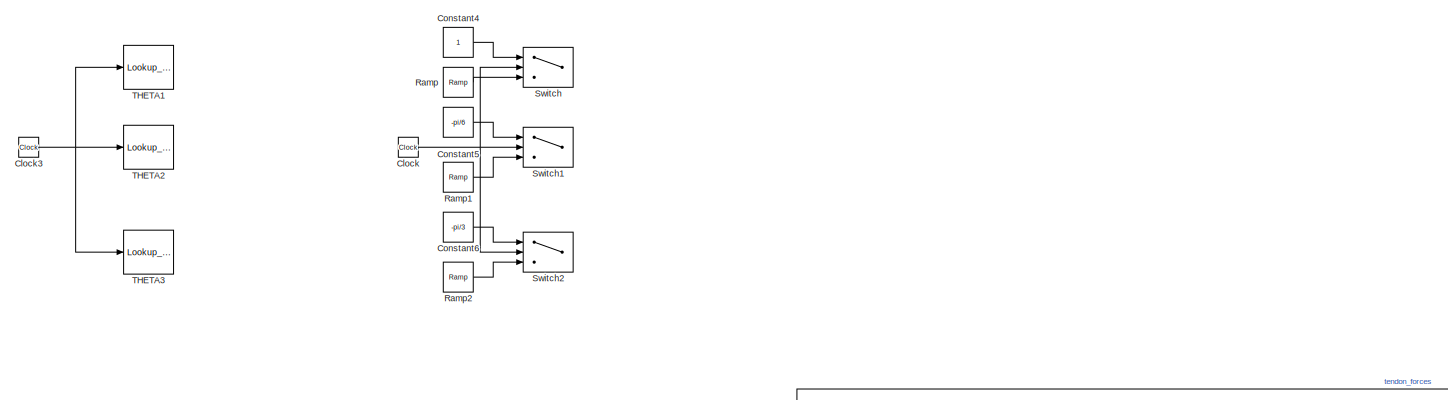
[diagram: root canvas - part 1/5, top left region]
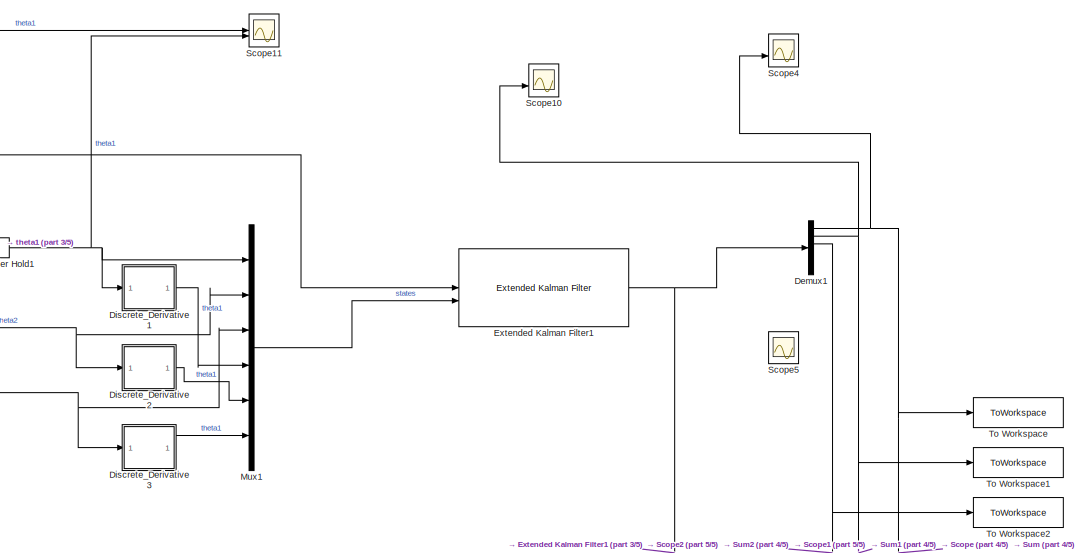
[diagram: root canvas - part 2/5, middle right region]
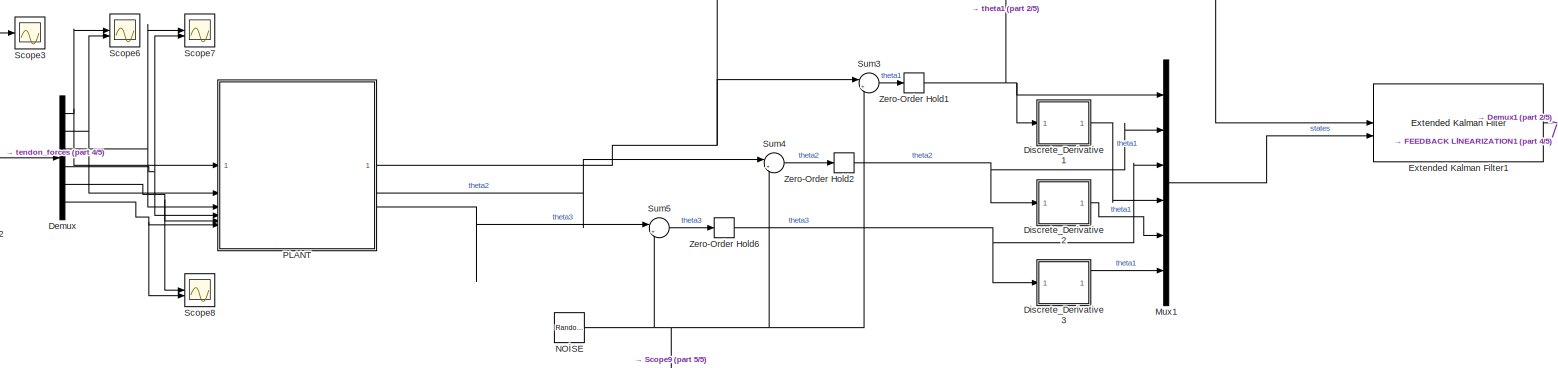
[diagram: root canvas - part 3/5, central region]
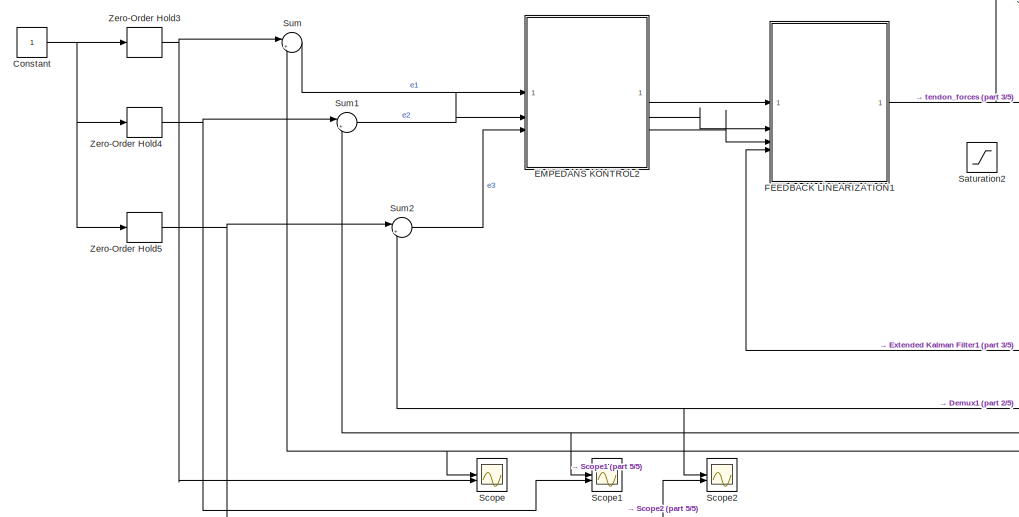
[diagram: root canvas - part 4/5, bottom left region]
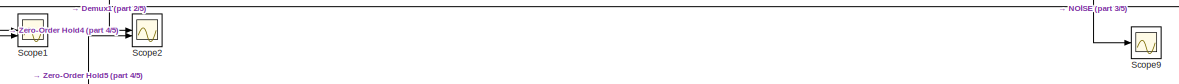
[diagram: root canvas - part 5/5, bottom center region]
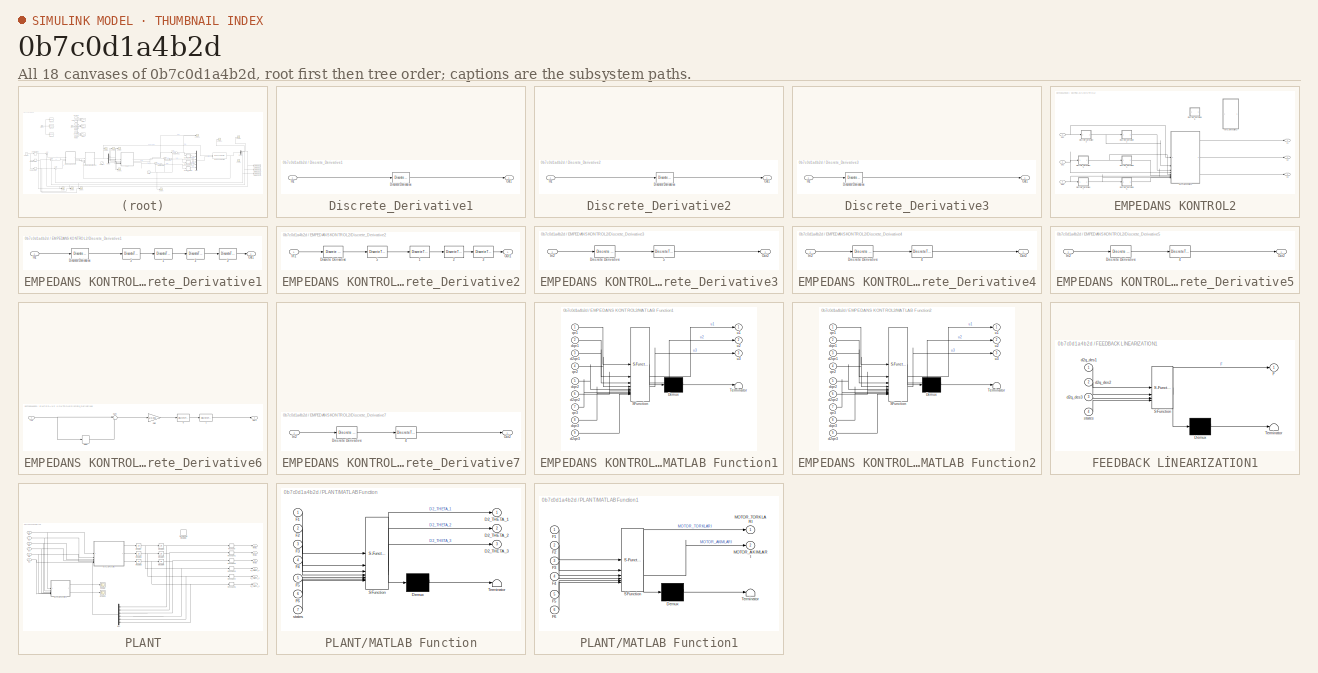
[diagram: thumbnail index - all 18 canvases of the model, root first then tree order]
MODEL slx_0b7c0d1a4b2d
KIND model
CONFIG AbsTol = auto
CONFIG EnableMultiTasking = off
CONFIG FixedStep = 0.001
CONFIG MaxStep = auto
CONFIG MinStep = auto
CONFIG RelTol = 1e-3
CONFIG SampleTimeConstraint = Unconstrained
CONFIG SolverName = FixedStepAuto
CONFIG StartTime = 0.0
CONFIG StopTime = 10
BLOCK [Clock] Clock
BLOCK [Clock] Clock3
BLOCK [Constant] Constant
BLOCK [Constant] Constant4
BLOCK [Constant] Constant5
  Value = -pi/6
BLOCK [Constant] Constant6
  Value = -pi/3
BLOCK [Demux] Demux
  Outputs = 6
BLOCK [Demux] Demux1
  Outputs = 6
BLOCK [SubSystem] Discrete_Derivative1
BLOCK [Reference] Discrete_Derivative1/Discrete Derivative  REF=simulink/Discrete/Discrete Derivative
  SourceBlock = simulink/Discrete/Discrete Derivative
  SourceType = Discrete Derivative
BLOCK [Inport] Discrete_Derivative1/In1
BLOCK [Outport] Discrete_Derivative1/Out1
BLOCK [SubSystem] Discrete_Derivative2
BLOCK [Reference] Discrete_Derivative2/Discrete Derivative  REF=simulink/Discrete/Discrete Derivative
  SourceBlock = simulink/Discrete/Discrete Derivative
  SourceType = Discrete Derivative
BLOCK [Inport] Discrete_Derivative2/In1
BLOCK [Outport] Discrete_Derivative2/Out1
BLOCK [SubSystem] Discrete_Derivative3
BLOCK [Reference] Discrete_Derivative3/Discrete Derivative  REF=simulink/Discrete/Discrete Derivative
  SourceBlock = simulink/Discrete/Discrete Derivative
  SourceType = Discrete Derivative
BLOCK [Inport] Discrete_Derivative3/In1
BLOCK [Outport] Discrete_Derivative3/Out1
BLOCK [SubSystem] EMPEDANS KONTROL2
BLOCK [SubSystem] EMPEDANS KONTROL2/Discrete_Derivative1
BLOCK [DiscreteTransferFcn] EMPEDANS KONTROL2/Discrete_Derivative1/1
  CloseFcn = dspblkCoreblockFVToolHelper(gcbh,'close');
  CopyFcn = dspblkCoreblockFVToolHelper(gcbh,'copy');
  DeleteFcn = dspblkCoreblockFVToolHelper(gcbh,'close');
  Denominator = [1 -0.9412]
  InputPortMap = u0
  LoadFcn = dspblkCoreblockFVToolHelper(gcbh,'load');
  ModelCloseFcn = dspblkCoreblockFVToolHelper(gcbh,'close');
  NameLocation = top
  Numerator = [0.0588]
  PostSaveFcn = dspblkCoreblockFVToolHelper(gcbh,'postsave');
  PreSaveFcn = dspblkCoreblockFVToolHelper(gcbh,'presave');
BLOCK [DiscreteTransferFcn] EMPEDANS KONTROL2/Discrete_Derivative1/2
  CloseFcn = dspblkCoreblockFVToolHelper(gcbh,'close');
  CopyFcn = dspblkCoreblockFVToolHelper(gcbh,'copy');
  DeleteFcn = dspblkCoreblockFVToolHelper(gcbh,'close');
  Denominator = [1 -0.9412]
  InputPortMap = u0
  LoadFcn = dspblkCoreblockFVToolHelper(gcbh,'load');
  ModelCloseFcn = dspblkCoreblockFVToolHelper(gcbh,'close');
  NameLocation = top
  Numerator = [0.0588]
  PostSaveFcn = dspblkCoreblockFVToolHelper(gcbh,'postsave');
  PreSaveFcn = dspblkCoreblockFVToolHelper(gcbh,'presave');
BLOCK [DiscreteTransferFcn] EMPEDANS KONTROL2/Discrete_Derivative1/3
  CloseFcn = dspblkCoreblockFVToolHelper(gcbh,'close');
  CopyFcn = dspblkCoreblockFVToolHelper(gcbh,'copy');
  DeleteFcn = dspblkCoreblockFVToolHelper(gcbh,'close');
  Denominator = [1 -0.9412]
  InputPortMap = u0
  LoadFcn = dspblkCoreblockFVToolHelper(gcbh,'load');
  ModelCloseFcn = dspblkCoreblockFVToolHelper(gcbh,'close');
  NameLocation = top
  Numerator = [0.0588]
  PostSaveFcn = dspblkCoreblockFVToolHelper(gcbh,'postsave');
  PreSaveFcn = dspblkCoreblockFVToolHelper(gcbh,'presave');
BLOCK [DiscreteTransferFcn] EMPEDANS KONTROL2/Discrete_Derivative1/5
  CloseFcn = dspblkCoreblockFVToolHelper(gcbh,'close');
  CopyFcn = dspblkCoreblockFVToolHelper(gcbh,'copy');
  DeleteFcn = dspblkCoreblockFVToolHelper(gcbh,'close');
  Denominator = [1 -0.9412]
  InputPortMap = u0
  LoadFcn = dspblkCoreblockFVToolHelper(gcbh,'load');
  ModelCloseFcn = dspblkCoreblockFVToolHelper(gcbh,'close');
  NameLocation = top
  Numerator = [0.0588]
  PostSaveFcn = dspblkCoreblockFVToolHelper(gcbh,'postsave');
  PreSaveFcn = dspblkCoreblockFVToolHelper(gcbh,'presave');
BLOCK [Reference] EMPEDANS KONTROL2/Discrete_Derivative1/Discrete Derivative  REF=simulink/Discrete/Discrete Derivative
  SourceBlock = simulink/Discrete/Discrete Derivative
  SourceType = Discrete Derivative
BLOCK [Inport] EMPEDANS KONTROL2/Discrete_Derivative1/In1
BLOCK [Outport] EMPEDANS KONTROL2/Discrete_Derivative1/Out1
BLOCK [SubSystem] EMPEDANS KONTROL2/Discrete_Derivative2
BLOCK [DiscreteTransferFcn] EMPEDANS KONTROL2/Discrete_Derivative2/1
  CloseFcn = dspblkCoreblockFVToolHelper(gcbh,'close');
  CopyFcn = dspblkCoreblockFVToolHelper(gcbh,'copy');
  DeleteFcn = dspblkCoreblockFVToolHelper(gcbh,'close');
  Denominator = [1 -0.9412]
  InputPortMap = u0
  LoadFcn = dspblkCoreblockFVToolHelper(gcbh,'load');
  ModelCloseFcn = dspblkCoreblockFVToolHelper(gcbh,'close');
  NameLocation = top
  Numerator = [0.0588]
  PostSaveFcn = dspblkCoreblockFVToolHelper(gcbh,'postsave');
  PreSaveFcn = dspblkCoreblockFVToolHelper(gcbh,'presave');
BLOCK [DiscreteTransferFcn] EMPEDANS KONTROL2/Discrete_Derivative2/2
  CloseFcn = dspblkCoreblockFVToolHelper(gcbh,'close');
  CopyFcn = dspblkCoreblockFVToolHelper(gcbh,'copy');
  DeleteFcn = dspblkCoreblockFVToolHelper(gcbh,'close');
  Denominator = [1 -0.9412]
  InputPortMap = u0
  LoadFcn = dspblkCoreblockFVToolHelper(gcbh,'load');
  ModelCloseFcn = dspblkCoreblockFVToolHelper(gcbh,'close');
  NameLocation = top
  Numerator = [0.0588]
  PostSaveFcn = dspblkCoreblockFVToolHelper(gcbh,'postsave');
  PreSaveFcn = dspblkCoreblockFVToolHelper(gcbh,'presave');
BLOCK [DiscreteTransferFcn] EMPEDANS KONTROL2/Discrete_Derivative2/3
  CloseFcn = dspblkCoreblockFVToolHelper(gcbh,'close');
  CopyFcn = dspblkCoreblockFVToolHelper(gcbh,'copy');
  DeleteFcn = dspblkCoreblockFVToolHelper(gcbh,'close');
  Denominator = [1 -0.9412]
  InputPortMap = u0
  LoadFcn = dspblkCoreblockFVToolHelper(gcbh,'load');
  ModelCloseFcn = dspblkCoreblockFVToolHelper(gcbh,'close');
  NameLocation = top
  Numerator = [0.0588]
  PostSaveFcn = dspblkCoreblockFVToolHelper(gcbh,'postsave');
  PreSaveFcn = dspblkCoreblockFVToolHelper(gcbh,'presave');
BLOCK [DiscreteTransferFcn] EMPEDANS KONTROL2/Discrete_Derivative2/5
  CloseFcn = dspblkCoreblockFVToolHelper(gcbh,'close');
  CopyFcn = dspblkCoreblockFVToolHelper(gcbh,'copy');
  DeleteFcn = dspblkCoreblockFVToolHelper(gcbh,'close');
  Denominator = [1 -0.9412]
  InputPortMap = u0
  LoadFcn = dspblkCoreblockFVToolHelper(gcbh,'load');
  ModelCloseFcn = dspblkCoreblockFVToolHelper(gcbh,'close');
  NameLocation = top
  Numerator = [0.0588]
  PostSaveFcn = dspblkCoreblockFVToolHelper(gcbh,'postsave');
  PreSaveFcn = dspblkCoreblockFVToolHelper(gcbh,'presave');
BLOCK [Reference] EMPEDANS KONTROL2/Discrete_Derivative2/Discrete Derivative  REF=simulink/Discrete/Discrete Derivative
  SourceBlock = simulink/Discrete/Discrete Derivative
  SourceType = Discrete Derivative
BLOCK [Inport] EMPEDANS KONTROL2/Discrete_Derivative2/In1
BLOCK [Outport] EMPEDANS KONTROL2/Discrete_Derivative2/Out1
BLOCK [SubSystem] EMPEDANS KONTROL2/Discrete_Derivative3
BLOCK [DiscreteTransferFcn] EMPEDANS KONTROL2/Discrete_Derivative3/5
  CloseFcn = dspblkCoreblockFVToolHelper(gcbh,'close');
  CopyFcn = dspblkCoreblockFVToolHelper(gcbh,'copy');
  DeleteFcn = dspblkCoreblockFVToolHelper(gcbh,'close');
  Denominator = [1 -0.9412]
  InputPortMap = u0
  LoadFcn = dspblkCoreblockFVToolHelper(gcbh,'load');
  ModelCloseFcn = dspblkCoreblockFVToolHelper(gcbh,'close');
  NameLocation = top
  Numerator = [0.0588]
  PostSaveFcn = dspblkCoreblockFVToolHelper(gcbh,'postsave');
  PreSaveFcn = dspblkCoreblockFVToolHelper(gcbh,'presave');
BLOCK [Reference] EMPEDANS KONTROL2/Discrete_Derivative3/Discrete Derivative  REF=simulink/Discrete/Discrete Derivative
  SourceBlock = simulink/Discrete/Discrete Derivative
  SourceType = Discrete Derivative
BLOCK [Inport] EMPEDANS KONTROL2/Discrete_Derivative3/In2
BLOCK [Outport] EMPEDANS KONTROL2/Discrete_Derivative3/Out2
BLOCK [SubSystem] EMPEDANS KONTROL2/Discrete_Derivative4
BLOCK [DiscreteTransferFcn] EMPEDANS KONTROL2/Discrete_Derivative4/4
  CloseFcn = dspblkCoreblockFVToolHelper(gcbh,'close');
  CopyFcn = dspblkCoreblockFVToolHelper(gcbh,'copy');
  DeleteFcn = dspblkCoreblockFVToolHelper(gcbh,'close');
  Denominator = [1 -0.9412]
  InputPortMap = u0
  LoadFcn = dspblkCoreblockFVToolHelper(gcbh,'load');
  ModelCloseFcn = dspblkCoreblockFVToolHelper(gcbh,'close');
  NameLocation = top
  Numerator = [0.0588]
  PostSaveFcn = dspblkCoreblockFVToolHelper(gcbh,'postsave');
  PreSaveFcn = dspblkCoreblockFVToolHelper(gcbh,'presave');
BLOCK [Reference] EMPEDANS KONTROL2/Discrete_Derivative4/Discrete Derivative  REF=simulink/Discrete/Discrete Derivative
  SourceBlock = simulink/Discrete/Discrete Derivative
  SourceType = Discrete Derivative
BLOCK [Inport] EMPEDANS KONTROL2/Discrete_Derivative4/In2
BLOCK [Outport] EMPEDANS KONTROL2/Discrete_Derivative4/Out2
BLOCK [SubSystem] EMPEDANS KONTROL2/Discrete_Derivative5
BLOCK [DiscreteTransferFcn] EMPEDANS KONTROL2/Discrete_Derivative5/4
  CloseFcn = dspblkCoreblockFVToolHelper(gcbh,'close');
  CopyFcn = dspblkCoreblockFVToolHelper(gcbh,'copy');
  DeleteFcn = dspblkCoreblockFVToolHelper(gcbh,'close');
  Denominator = [1 -0.9412]
  InputPortMap = u0
  LoadFcn = dspblkCoreblockFVToolHelper(gcbh,'load');
  ModelCloseFcn = dspblkCoreblockFVToolHelper(gcbh,'close');
  NameLocation = top
  Numerator = [0.0588]
  PostSaveFcn = dspblkCoreblockFVToolHelper(gcbh,'postsave');
  PreSaveFcn = dspblkCoreblockFVToolHelper(gcbh,'presave');
BLOCK [Reference] EMPEDANS KONTROL2/Discrete_Derivative5/Discrete Derivative  REF=simulink/Discrete/Discrete Derivative
  SourceBlock = simulink/Discrete/Discrete Derivative
  SourceType = Discrete Derivative
BLOCK [Inport] EMPEDANS KONTROL2/Discrete_Derivative5/In2
BLOCK [Outport] EMPEDANS KONTROL2/Discrete_Derivative5/Out2
BLOCK [SubSystem] EMPEDANS KONTROL2/Discrete_Derivative6
BLOCK [DiscreteTransferFcn] EMPEDANS KONTROL2/Discrete_Derivative6/1
  CloseFcn = dspblkCoreblockFVToolHelper(gcbh,'close');
  CopyFcn = dspblkCoreblockFVToolHelper(gcbh,'copy');
  DeleteFcn = dspblkCoreblockFVToolHelper(gcbh,'close');
  Denominator = [1 -0.9412]
  InputPortMap = u0
  LoadFcn = dspblkCoreblockFVToolHelper(gcbh,'load');
  ModelCloseFcn = dspblkCoreblockFVToolHelper(gcbh,'close');
  NameLocation = top
  Numerator = [0.0588]
  PostSaveFcn = dspblkCoreblockFVToolHelper(gcbh,'postsave');
  PreSaveFcn = dspblkCoreblockFVToolHelper(gcbh,'presave');
BLOCK [DiscreteTransferFcn] EMPEDANS KONTROL2/Discrete_Derivative6/5
  CloseFcn = dspblkCoreblockFVToolHelper(gcbh,'close');
  CopyFcn = dspblkCoreblockFVToolHelper(gcbh,'copy');
  DeleteFcn = dspblkCoreblockFVToolHelper(gcbh,'close');
  Denominator = [1 -0.9412]
  InputPortMap = u0
  LoadFcn = dspblkCoreblockFVToolHelper(gcbh,'load');
  ModelCloseFcn = dspblkCoreblockFVToolHelper(gcbh,'close');
  NameLocation = top
  Numerator = [0.0588]
  PostSaveFcn = dspblkCoreblockFVToolHelper(gcbh,'postsave');
  PreSaveFcn = dspblkCoreblockFVToolHelper(gcbh,'presave');
BLOCK [Delay] EMPEDANS KONTROL2/Discrete_Derivative6/Delay
  DelayLength = 1
  InputPortMap = u0
  InputProcessing = Columns as channels (frame based)
  SampleTime = 0.001
BLOCK [Gain] EMPEDANS KONTROL2/Discrete_Derivative6/Gain
  Gain = 1/0.001
BLOCK [Inport] EMPEDANS KONTROL2/Discrete_Derivative6/In1
BLOCK [Outport] EMPEDANS KONTROL2/Discrete_Derivative6/Out1
BLOCK [Sum] EMPEDANS KONTROL2/Discrete_Derivative6/Sum
  Inputs = |+-
BLOCK [SubSystem] EMPEDANS KONTROL2/Discrete_Derivative7
BLOCK [DiscreteTransferFcn] EMPEDANS KONTROL2/Discrete_Derivative7/4
  CloseFcn = dspblkCoreblockFVToolHelper(gcbh,'close');
  CopyFcn = dspblkCoreblockFVToolHelper(gcbh,'copy');
  DeleteFcn = dspblkCoreblockFVToolHelper(gcbh,'close');
  Denominator = [1 -0.9412]
  InputPortMap = u0
  LoadFcn = dspblkCoreblockFVToolHelper(gcbh,'load');
  ModelCloseFcn = dspblkCoreblockFVToolHelper(gcbh,'close');
  NameLocation = top
  Numerator = [0.0588]
  PostSaveFcn = dspblkCoreblockFVToolHelper(gcbh,'postsave');
  PreSaveFcn = dspblkCoreblockFVToolHelper(gcbh,'presave');
BLOCK [Reference] EMPEDANS KONTROL2/Discrete_Derivative7/Discrete Derivative  REF=simulink/Discrete/Discrete Derivative
  SourceBlock = simulink/Discrete/Discrete Derivative
  SourceType = Discrete Derivative
BLOCK [Inport] EMPEDANS KONTROL2/Discrete_Derivative7/In2
BLOCK [Outport] EMPEDANS KONTROL2/Discrete_Derivative7/Out2
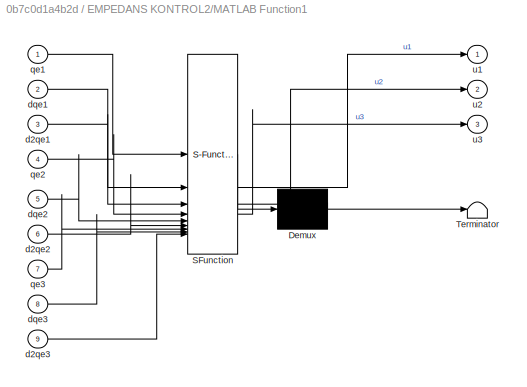
BLOCK [SubSystem] EMPEDANS KONTROL2/MATLAB Function1
  ErrorFcn = Stateflow.Translate.translate
  PermitHierarchicalResolution = ExplicitOnly
  SFBlockType = MATLAB Function
  TreatAsAtomicUnit = on
BLOCK [Demux] EMPEDANS KONTROL2/MATLAB Function1/ Demux 
  Outputs = 1
BLOCK [S-Function] EMPEDANS KONTROL2/MATLAB Function1/ SFunction 
  EnableBusSupport = on
  FunctionName = sf_sfun
  PortCounts = [9 4]
  SFcnIsStateOwnerBlock = off
  SFunctionDeploymentMode = off
  Tag = Stateflow S-Function 6
BLOCK [Terminator] EMPEDANS KONTROL2/MATLAB Function1/ Terminator 
BLOCK [Inport] EMPEDANS KONTROL2/MATLAB Function1/d2qe1
  Port = 3
BLOCK [Inport] EMPEDANS KONTROL2/MATLAB Function1/d2qe2
  Port = 6
BLOCK [Inport] EMPEDANS KONTROL2/MATLAB Function1/d2qe3
  Port = 9
BLOCK [Inport] EMPEDANS KONTROL2/MATLAB Function1/dqe1
  Port = 2
BLOCK [Inport] EMPEDANS KONTROL2/MATLAB Function1/dqe2
  Port = 5
BLOCK [Inport] EMPEDANS KONTROL2/MATLAB Function1/dqe3
  Port = 8
BLOCK [Inport] EMPEDANS KONTROL2/MATLAB Function1/qe1
BLOCK [Inport] EMPEDANS KONTROL2/MATLAB Function1/qe2
  Port = 4
BLOCK [Inport] EMPEDANS KONTROL2/MATLAB Function1/qe3
  Port = 7
BLOCK [Outport] EMPEDANS KONTROL2/MATLAB Function1/u1
BLOCK [Outport] EMPEDANS KONTROL2/MATLAB Function1/u2
  Port = 2
BLOCK [Outport] EMPEDANS KONTROL2/MATLAB Function1/u3
  Port = 3
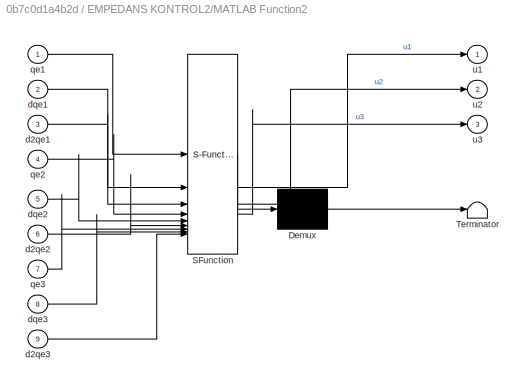
BLOCK [SubSystem] EMPEDANS KONTROL2/MATLAB Function2
  ErrorFcn = Stateflow.Translate.translate
  PermitHierarchicalResolution = ExplicitOnly
  SFBlockType = MATLAB Function
  TreatAsAtomicUnit = on
BLOCK [Demux] EMPEDANS KONTROL2/MATLAB Function2/ Demux 
  Outputs = 1
BLOCK [S-Function] EMPEDANS KONTROL2/MATLAB Function2/ SFunction 
  EnableBusSupport = on
  FunctionName = sf_sfun
  PortCounts = [9 4]
  SFcnIsStateOwnerBlock = off
  SFunctionDeploymentMode = off
  Tag = Stateflow S-Function 4
BLOCK [Terminator] EMPEDANS KONTROL2/MATLAB Function2/ Terminator 
BLOCK [Inport] EMPEDANS KONTROL2/MATLAB Function2/d2qe1
  Port = 3
BLOCK [Inport] EMPEDANS KONTROL2/MATLAB Function2/d2qe2
  Port = 6
BLOCK [Inport] EMPEDANS KONTROL2/MATLAB Function2/d2qe3
  Port = 9
BLOCK [Inport] EMPEDANS KONTROL2/MATLAB Function2/dqe1
  Port = 2
BLOCK [Inport] EMPEDANS KONTROL2/MATLAB Function2/dqe2
  Port = 5
BLOCK [Inport] EMPEDANS KONTROL2/MATLAB Function2/dqe3
  Port = 8
BLOCK [Inport] EMPEDANS KONTROL2/MATLAB Function2/qe1
BLOCK [Inport] EMPEDANS KONTROL2/MATLAB Function2/qe2
  Port = 4
BLOCK [Inport] EMPEDANS KONTROL2/MATLAB Function2/qe3
  Port = 7
BLOCK [Outport] EMPEDANS KONTROL2/MATLAB Function2/u1
BLOCK [Outport] EMPEDANS KONTROL2/MATLAB Function2/u2
  Port = 2
BLOCK [Outport] EMPEDANS KONTROL2/MATLAB Function2/u3
  Port = 3
BLOCK [Inport] EMPEDANS KONTROL2/qe1
BLOCK [Inport] EMPEDANS KONTROL2/qe2
  Port = 2
BLOCK [Inport] EMPEDANS KONTROL2/qe3
  Port = 3
BLOCK [Outport] EMPEDANS KONTROL2/u1
BLOCK [Outport] EMPEDANS KONTROL2/u2
  Port = 2
BLOCK [Outport] EMPEDANS KONTROL2/u3
  Port = 3
BLOCK [Reference] Extended Kalman Filter1  REF=sharedTrackingLibrary/Extended Kalman Filter
  LibrarySourceBlock = slident/Estimators/Extended Kalman Filter
  SourceBlock = sharedTrackingLibrary/Extended Kalman Filter
  SourceType = Extended Kalman Filter
BLOCK [SubSystem] FEEDBACK LİNEARIZATION1
  ErrorFcn = Stateflow.Translate.translate
  PermitHierarchicalResolution = ExplicitOnly
  SFBlockType = MATLAB Function
  TreatAsAtomicUnit = on
BLOCK [Demux] FEEDBACK LİNEARIZATION1/ Demux 
  Outputs = 1
BLOCK [S-Function] FEEDBACK LİNEARIZATION1/ SFunction 
  EnableBusSupport = on
  FunctionName = sf_sfun
  PortCounts = [4 2]
  SFcnIsStateOwnerBlock = off
  SFunctionDeploymentMode = off
  Tag = Stateflow S-Function 3
BLOCK [Terminator] FEEDBACK LİNEARIZATION1/ Terminator 
BLOCK [Outport] FEEDBACK LİNEARIZATION1/F
BLOCK [Inport] FEEDBACK LİNEARIZATION1/d2q_des1
BLOCK [Inport] FEEDBACK LİNEARIZATION1/d2q_des2
  Port = 2
BLOCK [Inport] FEEDBACK LİNEARIZATION1/d2q_des3
  Port = 3
BLOCK [Inport] FEEDBACK LİNEARIZATION1/states
  Port = 4
BLOCK [Mux] Mux1
  DisplayOption = bar
  Inputs = 6
BLOCK [RandomNumber] NOİSE
  SampleTime = 0.001
  Variance = 6e-6
BLOCK [SubSystem] PLANT
BLOCK [Outport] PLANT/D_THETA_1
  Port = 4
BLOCK [Outport] PLANT/D_THETA_2
  Port = 5
BLOCK [Outport] PLANT/D_THETA_3
  Port = 6
BLOCK [DiscreteIntegrator] PLANT/Discrete-Time Integrator1
  ICPrevOutput = DiscIntNeverNeededParam
  ICPrevScaledInput = DiscIntNeverNeededParam
  InitialConditionSetting = Auto
  SampleTime = 0.001
BLOCK [Inport] PLANT/F1
BLOCK [Inport] PLANT/F2
  Port = 2
BLOCK [Inport] PLANT/F3
  Port = 3
BLOCK [Inport] PLANT/F4
  Port = 4
BLOCK [Inport] PLANT/F5
  Port = 5
BLOCK [Inport] PLANT/F6
  Port = 6
BLOCK [Integrator] PLANT/Integrator
BLOCK [Integrator] PLANT/Integrator1
BLOCK [Integrator] PLANT/Integrator2
BLOCK [Integrator] PLANT/Integrator3
BLOCK [Integrator] PLANT/Integrator4
BLOCK [Integrator] PLANT/Integrator5
BLOCK [SubSystem] PLANT/MATLAB Function
  ErrorFcn = Stateflow.Translate.translate
  PermitHierarchicalResolution = ExplicitOnly
  SFBlockType = MATLAB Function
  TreatAsAtomicUnit = on
BLOCK [Demux] PLANT/MATLAB Function/ Demux 
  Outputs = 1
BLOCK [S-Function] PLANT/MATLAB Function/ SFunction 
  EnableBusSupport = on
  FunctionName = sf_sfun
  PortCounts = [7 4]
  SFcnIsStateOwnerBlock = off
  SFunctionDeploymentMode = off
  Tag = Stateflow S-Function 2
BLOCK [Terminator] PLANT/MATLAB Function/ Terminator 
BLOCK [Outport] PLANT/MATLAB Function/D2_THETA_1
BLOCK [Outport] PLANT/MATLAB Function/D2_THETA_2
  Port = 2
BLOCK [Outport] PLANT/MATLAB Function/D2_THETA_3
  Port = 3
BLOCK [Inport] PLANT/MATLAB Function/F1
BLOCK [Inport] PLANT/MATLAB Function/F2
  Port = 2
BLOCK [Inport] PLANT/MATLAB Function/F3
  Port = 3
BLOCK [Inport] PLANT/MATLAB Function/F4
  Port = 4
BLOCK [Inport] PLANT/MATLAB Function/F5
  Port = 5
BLOCK [Inport] PLANT/MATLAB Function/F6
  Port = 6
BLOCK [Inport] PLANT/MATLAB Function/states
  Port = 7
BLOCK [SubSystem] PLANT/MATLAB Function1
  ErrorFcn = Stateflow.Translate.translate
  PermitHierarchicalResolution = ExplicitOnly
  SFBlockType = MATLAB Function
  TreatAsAtomicUnit = on
BLOCK [Demux] PLANT/MATLAB Function1/ Demux 
  Outputs = 1
BLOCK [S-Function] PLANT/MATLAB Function1/ SFunction 
  EnableBusSupport = on
  FunctionName = sf_sfun
  PortCounts = [6 3]
  SFcnIsStateOwnerBlock = off
  SFunctionDeploymentMode = off
  Tag = Stateflow S-Function 1
BLOCK [Terminator] PLANT/MATLAB Function1/ Terminator 
BLOCK [Inport] PLANT/MATLAB Function1/F1
BLOCK [Inport] PLANT/MATLAB Function1/F2
  Port = 2
BLOCK [Inport] PLANT/MATLAB Function1/F3
  Port = 3
BLOCK [Inport] PLANT/MATLAB Function1/F4
  Port = 4
BLOCK [Inport] PLANT/MATLAB Function1/F5
  Port = 5
BLOCK [Inport] PLANT/MATLAB Function1/F6
  Port = 6
BLOCK [Outport] PLANT/MATLAB Function1/MOTOR_AKIMLARI
  Port = 2
BLOCK [Outport] PLANT/MATLAB Function1/MOTOR_TORKLARI
BLOCK [Mux] PLANT/Mux
  DisplayOption = bar
  Inputs = 6
  NameLocation = top
BLOCK [Reshape] PLANT/Reshape
  OutputDimensionality = Customize
BLOCK [Reshape] PLANT/Reshape1
  OutputDimensionality = Customize
BLOCK [Reshape] PLANT/Reshape2
  OutputDimensionality = Customize
BLOCK [Reshape] PLANT/Reshape3
  OutputDimensionality = Customize
BLOCK [Reshape] PLANT/Reshape4
  OutputDimensionality = Customize
BLOCK [Reshape] PLANT/Reshape5
  OutputDimensionality = Customize
BLOCK [Scope] PLANT/Scope
  Floating = off
  NumInputPorts = 1
  ScopeSpecificationString = Simulink.scopes.TimeScopeBlockCfg('CurrentConfiguration', extmgr.ConfigurationSet(extmgr.Configuration('Core','General UI',true),extmgr.Configuration('Core','Source UI',true),extmgr.Configuration('Sources','WiredSimulink',true,'DataLoggingVariableName','ScopeData1'),extmgr.Configuration('Visuals','Time Domain',true,'SerializedDisplays',{struct('MinYLimReal','-0.0105','MaxYLimReal','0.09573','YLabe...<+1686ch>
BLOCK [Scope] PLANT/Scope1
  Floating = off
  NumInputPorts = 1
  ScopeSpecificationString = Simulink.scopes.TimeScopeBlockCfg('CurrentConfiguration', extmgr.ConfigurationSet(extmgr.Configuration('Core','General UI',true),extmgr.Configuration('Core','Source UI',true),extmgr.Configuration('Sources','WiredSimulink',true,'DataLoggingVariableName','ScopeData2'),extmgr.Configuration('Visuals','Time Domain',true,'SerializedDisplays',{struct('MinYLimReal','-0.01063','MaxYLimReal','0.09566','YLab...<+1732ch>
BLOCK [Outport] PLANT/theta1
BLOCK [Outport] PLANT/theta2
  Port = 2
BLOCK [Outport] PLANT/theta3
  Port = 3
BLOCK [Reference] Ramp  REF=simulink/Sources/Ramp
  SourceBlock = simulink/Sources/Ramp
  SourceType = Ramp
BLOCK [Reference] Ramp1  REF=simulink/Sources/Ramp
  SourceBlock = simulink/Sources/Ramp
  SourceType = Ramp
BLOCK [Reference] Ramp2  REF=simulink/Sources/Ramp
  SourceBlock = simulink/Sources/Ramp
  SourceType = Ramp
BLOCK [Saturate] Saturation2
  LowerLimit = -7
  UpperLimit = 7
BLOCK [Scope] Scope
  Floating = off
  NumInputPorts = 2
  ScopeSpecificationString = Simulink.scopes.TimeScopeBlockCfg('CurrentConfiguration', extmgr.ConfigurationSet(extmgr.Configuration('Core','General UI',true,'FigureColor',[0.831372549019608 0.815686274509804 0.784313725490196]),extmgr.Configuration('Core','Source UI',true),extmgr.Configuration('Sources','WiredSimulink',true,'DataLoggingVariableName','ScopeData1'),extmgr.Configuration('Visuals','Time Domain',true,'SerializedDi...<+1886ch>
BLOCK [Scope] Scope1
  Floating = off
  NumInputPorts = 2
  ScopeSpecificationString = Simulink.scopes.TimeScopeBlockCfg('CurrentConfiguration', extmgr.ConfigurationSet(extmgr.Configuration('Core','General UI',true,'FigureColor',[0.831372549019608 0.815686274509804 0.784313725490196]),extmgr.Configuration('Core','Source UI',true),extmgr.Configuration('Sources','WiredSimulink',true,'DataLoggingVariableName','ScopeData2'),extmgr.Configuration('Visuals','Time Domain',true,'SerializedDi...<+1886ch>
BLOCK [Scope] Scope10
  Floating = off
  NumInputPorts = 2
  ScopeSpecificationString = Simulink.scopes.TimeScopeBlockCfg('CurrentConfiguration', extmgr.ConfigurationSet(extmgr.Configuration('Core','General UI',true),extmgr.Configuration('Core','Source UI',true),extmgr.Configuration('Sources','WiredSimulink',true,'DataLoggingVariableName','ScopeData4'),extmgr.Configuration('Visuals','Time Domain',true,'SerializedDisplays',{struct('MinYLimReal','-0.45354','MaxYLimReal','0.21293','YLab...<+1539ch>
BLOCK [Scope] Scope11
  Floating = off
  NumInputPorts = 2
  ScopeSpecificationString = Simulink.scopes.TimeScopeBlockCfg('CurrentConfiguration', extmgr.ConfigurationSet(extmgr.Configuration('Core','General UI',true),extmgr.Configuration('Core','Source UI',true),extmgr.Configuration('Sources','WiredSimulink',true,'DataLoggingVariableName','ScopeData5'),extmgr.Configuration('Visuals','Time Domain',true,'SerializedDisplays',{struct('MinYLimReal','-0.21331','MaxYLimReal','1.87365','YLab...<+1534ch>
BLOCK [Scope] Scope2
  Floating = off
  NumInputPorts = 2
  ScopeSpecificationString = Simulink.scopes.TimeScopeBlockCfg('CurrentConfiguration', extmgr.ConfigurationSet(extmgr.Configuration('Core','General UI',true,'FigureColor',[0.831372549019608 0.815686274509804 0.784313725490196]),extmgr.Configuration('Core','Source UI',true),extmgr.Configuration('Sources','WiredSimulink',true,'DataLoggingVariableName','ScopeData3'),extmgr.Configuration('Visuals','Time Domain',true,'SerializedDi...<+1886ch>
BLOCK [Scope] Scope3
  Floating = off
  NumInputPorts = 1
  ScopeSpecificationString = Simulink.scopes.TimeScopeBlockCfg('CurrentConfiguration', extmgr.ConfigurationSet(extmgr.Configuration('Core','General UI',true),extmgr.Configuration('Core','Source UI',true),extmgr.Configuration('Sources','WiredSimulink',true,'DataLoggingVariableName','ScopeData6'),extmgr.Configuration('Visuals','Time Domain',true,'SerializedDisplays',{struct('MinYLimReal','-5.3347','MaxYLimReal','48.01226','YLab...<+1555ch>
BLOCK [Scope] Scope4
  Floating = off
  NumInputPorts = 2
  ScopeSpecificationString = Simulink.scopes.TimeScopeBlockCfg('CurrentConfiguration', extmgr.ConfigurationSet(extmgr.Configuration('Core','General UI',true),extmgr.Configuration('Core','Source UI',true),extmgr.Configuration('Sources','WiredSimulink',true,'DataLoggingVariableName','ScopeData3'),extmgr.Configuration('Visuals','Time Domain',true,'SerializedDisplays',{struct('MinYLimReal','-0.18476','MaxYLimReal','1.66189','YLab...<+1539ch>
BLOCK [Scope] Scope5
  Floating = off
  NumInputPorts = 1
  ScopeSpecificationString = Simulink.scopes.TimeScopeBlockCfg('CurrentConfiguration', extmgr.ConfigurationSet(extmgr.Configuration('Core','General UI',true),extmgr.Configuration('Core','Source UI',true),extmgr.Configuration('Sources','WiredSimulink',true,'DataLoggingVariableName','ScopeData2'),extmgr.Configuration('Visuals','Time Domain',true,'SerializedDisplays',{struct('MinYLimReal','-1.00000','MaxYLimReal','1.00000','YLab...<+1544ch>
BLOCK [Scope] Scope6
  Floating = off
  NumInputPorts = 2
  ScopeSpecificationString = Simulink.scopes.TimeScopeBlockCfg('CurrentConfiguration', extmgr.ConfigurationSet(extmgr.Configuration('Core','General UI',true),extmgr.Configuration('Core','Source UI',true),extmgr.Configuration('Sources','WiredSimulink',true,'DataLoggingVariableName','ScopeData3'),extmgr.Configuration('Visuals','Time Domain',true,'SerializedDisplays',{struct('MinYLimReal','-1.3124','MaxYLimReal','11.81157','YLab...<+1538ch>
BLOCK [Scope] Scope7
  Floating = off
  NumInputPorts = 2
  ScopeSpecificationString = Simulink.scopes.TimeScopeBlockCfg('CurrentConfiguration', extmgr.ConfigurationSet(extmgr.Configuration('Core','General UI',true),extmgr.Configuration('Core','Source UI',true),extmgr.Configuration('Sources','WiredSimulink',true,'DataLoggingVariableName','ScopeData4'),extmgr.Configuration('Visuals','Time Domain',true,'SerializedDisplays',{struct('MinYLimReal','-0.44609','MaxYLimReal','4.01484','YLab...<+1536ch>
BLOCK [Scope] Scope8
  Floating = off
  NumInputPorts = 2
  ScopeSpecificationString = Simulink.scopes.TimeScopeBlockCfg('CurrentConfiguration', extmgr.ConfigurationSet(extmgr.Configuration('Core','General UI',true),extmgr.Configuration('Core','Source UI',true),extmgr.Configuration('Sources','WiredSimulink',true,'DataLoggingVariableName','ScopeData5'),extmgr.Configuration('Visuals','Time Domain',true,'SerializedDisplays',{struct('MinYLimReal','-0.08351','MaxYLimReal','0.75155','YLab...<+1536ch>
BLOCK [Scope] Scope9
  Floating = off
  NumInputPorts = 1
  ScopeSpecificationString = Simulink.scopes.TimeScopeBlockCfg('CurrentConfiguration', extmgr.ConfigurationSet(extmgr.Configuration('Core','General UI',true),extmgr.Configuration('Core','Source UI',true),extmgr.Configuration('Sources','WiredSimulink',true,'DataLoggingVariableName','ScopeData1'),extmgr.Configuration('Visuals','Time Domain',true,'SerializedDisplays',{struct('MinYLimReal','-0.01187','MaxYLimReal','0.01172','YLab...<+1505ch>
BLOCK [Sum] Sum
  Inputs = |+-
BLOCK [Sum] Sum1
  Inputs = |+-
BLOCK [Sum] Sum2
  Inputs = |+-
BLOCK [Sum] Sum3
  Inputs = |++
BLOCK [Sum] Sum4
  Inputs = |++
BLOCK [Sum] Sum5
  Inputs = |++
BLOCK [Switch] Switch
  Criteria = u2 > Threshold
  InputSameDT = off
  SaturateOnIntegerOverflow = off
  Threshold = 2
BLOCK [Switch] Switch1
  Criteria = u2 > Threshold
  InputSameDT = off
  SaturateOnIntegerOverflow = off
  Threshold = 2
BLOCK [Switch] Switch2
  Criteria = u2 > Threshold
  InputSameDT = off
  SaturateOnIntegerOverflow = off
  Threshold = 2
BLOCK [Lookup_n-D] THETA1
  BreakpointsForDimension1 = [0:0.02649:20]
  InputPortMap = u0
  InternalRulePriority = Speed
  NumberOfTableDimensions = 1
  RndMeth = Simplest
  Table = [3.6739403974420595e-17  0.0018373747386941153  0.031104117726482236  0.018742775985835458  0.03582520263747096  0.04592374641467687  0.052359865334245005  0.024058789434421298  0.0371846744639253  0.03766299609142134  0.04053395039223553  0.05419725229851646  0.03858245137367349  0.06940555854089034  0.07349874804657569  0.06036247150750728  0.05603574389361684  0.060203800337469145  0.0574270776...<+14715ch>
BLOCK [Lookup_n-D] THETA2
  BreakpointsForDimension1 = [0:0.02649:20]
  InputPortMap = u0
  InternalRulePriority = Speed
  NumberOfTableDimensions = 1
  RndMeth = Simplest
  Table = [0.0  0.03490658503988885  -0.033284041948025575  0.024108973093034097  0.017453292519947913  0.010897133595376871  2.580956827951785e-08  0.05801510497744568  0.04868897935829344  0.05235987755982642  0.060690073963622776  0.03490658503990476  0.06981317007977231  0.024238413989330437  0.014730566219418576  0.05579073535311509  0.06981317007977231  0.06823361310456687  0.08130478950558964  0.0281...<+15914ch>
BLOCK [Lookup_n-D] THETA3
  BreakpointsForDimension1 = [0:0.02649:20]
  InputPortMap = u0
  InternalRulePriority = Speed
  NumberOfTableDimensions = 1
  RndMeth = Simplest
  Table = [1.4901161157108252e-08  -0.08910383733841787  -0.0327266608183487  -0.12139156541861737  -0.17545154279702416  -0.19644722016959976  -0.19198623130335932  -0.21297358831144533  -0.2429532865017081  -0.2471025063307386  -0.27575694955529145  -0.2636367625378544  -0.282928546652879  -0.29435683650957045  -0.2802155319853704  -0.32559271709994325  -0.3352884242127084  -0.34660356994132824  -0.365624...<+15327ch>
BLOCK [ToWorkspace] To Workspace
  FixptAsFi = on
  MaxDataPoints = inf
  SampleTime = -1
  SaveFormat = Timeseries
  VariableName = theta1
BLOCK [ToWorkspace] To Workspace1
  FixptAsFi = on
  MaxDataPoints = inf
  SampleTime = -1
  SaveFormat = Timeseries
  VariableName = theta2
BLOCK [ToWorkspace] To Workspace2
  FixptAsFi = on
  MaxDataPoints = inf
  SampleTime = -1
  SaveFormat = Timeseries
  VariableName = theta3
BLOCK [ZeroOrderHold] Zero-Order Hold1
  SampleTime = 0.001
BLOCK [ZeroOrderHold] Zero-Order Hold2
  SampleTime = 0.001
BLOCK [ZeroOrderHold] Zero-Order Hold3
  SampleTime = 0.001
BLOCK [ZeroOrderHold] Zero-Order Hold4
  SampleTime = 0.001
BLOCK [ZeroOrderHold] Zero-Order Hold5
  SampleTime = 0.001
BLOCK [ZeroOrderHold] Zero-Order Hold6
  SampleTime = 0.001
NET Clock3:1 -> THETA1:1, THETA2:1, THETA3:1
NET Clock:1 -> Switch1:2, Switch2:2, Switch:2
LINE Constant4:1 -> Switch:1
LINE Constant5:1 -> Switch1:1
LINE Constant6:1 -> Switch2:1
NET Constant:1 -> Zero-Order Hold3:1, Zero-Order Hold4:1, Zero-Order Hold5:1
NET Demux1:1 -> Scope4:2, Scope:1, Sum:2, To Workspace:1
NET Demux1:2 -> Scope10:2, Scope1:1, Sum1:2, To Workspace1:1
NET Demux1:3 -> Scope2:1, Sum2:2, To Workspace2:1
NET Demux:1 -> PLANT:1, Scope6:1
NET Demux:2 -> PLANT:2, Scope6:2
NET Demux:3 -> PLANT:3, Scope7:1
NET Demux:4 -> PLANT:4, Scope7:2
NET Demux:5 -> PLANT:5, Scope8:1
NET Demux:6 -> PLANT:6, Scope8:2
LINE Discrete_Derivative1/Discrete Derivative:1 -> Discrete_Derivative1/Out1:1
LINE Discrete_Derivative1/In1:1 -> Discrete_Derivative1/Discrete Derivative:1
LINE Discrete_Derivative1:1 -> Mux1:4
LINE Discrete_Derivative2/Discrete Derivative:1 -> Discrete_Derivative2/Out1:1
LINE Discrete_Derivative2/In1:1 -> Discrete_Derivative2/Discrete Derivative:1
LINE Discrete_Derivative2:1 -> Mux1:5
LINE Discrete_Derivative3/Discrete Derivative:1 -> Discrete_Derivative3/Out1:1
LINE Discrete_Derivative3/In1:1 -> Discrete_Derivative3/Discrete Derivative:1
LINE Discrete_Derivative3:1 -> Mux1:6
LINE EMPEDANS KONTROL2/Discrete_Derivative1/1:1 -> EMPEDANS KONTROL2/Discrete_Derivative1/2:1
LINE EMPEDANS KONTROL2/Discrete_Derivative1/2:1 -> EMPEDANS KONTROL2/Discrete_Derivative1/3:1
LINE EMPEDANS KONTROL2/Discrete_Derivative1/3:1 -> EMPEDANS KONTROL2/Discrete_Derivative1/Out1:1
LINE EMPEDANS KONTROL2/Discrete_Derivative1/5:1 -> EMPEDANS KONTROL2/Discrete_Derivative1/1:1
LINE EMPEDANS KONTROL2/Discrete_Derivative1/Discrete Derivative:1 -> EMPEDANS KONTROL2/Discrete_Derivative1/5:1
LINE EMPEDANS KONTROL2/Discrete_Derivative1/In1:1 -> EMPEDANS KONTROL2/Discrete_Derivative1/Discrete Derivative:1
LINE EMPEDANS KONTROL2/Discrete_Derivative1:1 -> EMPEDANS KONTROL2/MATLAB Function2:3
LINE EMPEDANS KONTROL2/Discrete_Derivative2/1:1 -> EMPEDANS KONTROL2/Discrete_Derivative2/2:1
LINE EMPEDANS KONTROL2/Discrete_Derivative2/2:1 -> EMPEDANS KONTROL2/Discrete_Derivative2/3:1
LINE EMPEDANS KONTROL2/Discrete_Derivative2/3:1 -> EMPEDANS KONTROL2/Discrete_Derivative2/Out1:1
LINE EMPEDANS KONTROL2/Discrete_Derivative2/5:1 -> EMPEDANS KONTROL2/Discrete_Derivative2/1:1
LINE EMPEDANS KONTROL2/Discrete_Derivative2/Discrete Derivative:1 -> EMPEDANS KONTROL2/Discrete_Derivative2/5:1
LINE EMPEDANS KONTROL2/Discrete_Derivative2/In1:1 -> EMPEDANS KONTROL2/Discrete_Derivative2/Discrete Derivative:1
NET EMPEDANS KONTROL2/Discrete_Derivative2:1 -> EMPEDANS KONTROL2/Discrete_Derivative1:1, EMPEDANS KONTROL2/MATLAB Function2:2
LINE EMPEDANS KONTROL2/Discrete_Derivative3/5:1 -> EMPEDANS KONTROL2/Discrete_Derivative3/Out2:1
LINE EMPEDANS KONTROL2/Discrete_Derivative3/Discrete Derivative:1 -> EMPEDANS KONTROL2/Discrete_Derivative3/5:1
LINE EMPEDANS KONTROL2/Discrete_Derivative3/In2:1 -> EMPEDANS KONTROL2/Discrete_Derivative3/Discrete Derivative:1
NET EMPEDANS KONTROL2/Discrete_Derivative3:1 -> EMPEDANS KONTROL2/Discrete_Derivative4:1, EMPEDANS KONTROL2/MATLAB Function2:5
LINE EMPEDANS KONTROL2/Discrete_Derivative4/4:1 -> EMPEDANS KONTROL2/Discrete_Derivative4/Out2:1
LINE EMPEDANS KONTROL2/Discrete_Derivative4/Discrete Derivative:1 -> EMPEDANS KONTROL2/Discrete_Derivative4/4:1
LINE EMPEDANS KONTROL2/Discrete_Derivative4/In2:1 -> EMPEDANS KONTROL2/Discrete_Derivative4/Discrete Derivative:1
LINE EMPEDANS KONTROL2/Discrete_Derivative4:1 -> EMPEDANS KONTROL2/MATLAB Function2:6
LINE EMPEDANS KONTROL2/Discrete_Derivative5/4:1 -> EMPEDANS KONTROL2/Discrete_Derivative5/Out2:1
LINE EMPEDANS KONTROL2/Discrete_Derivative5/Discrete Derivative:1 -> EMPEDANS KONTROL2/Discrete_Derivative5/4:1
LINE EMPEDANS KONTROL2/Discrete_Derivative5/In2:1 -> EMPEDANS KONTROL2/Discrete_Derivative5/Discrete Derivative:1
LINE EMPEDANS KONTROL2/Discrete_Derivative5:1 -> EMPEDANS KONTROL2/MATLAB Function2:9
LINE EMPEDANS KONTROL2/Discrete_Derivative6/1:1 -> EMPEDANS KONTROL2/Discrete_Derivative6/Out1:1
LINE EMPEDANS KONTROL2/Discrete_Derivative6/5:1 -> EMPEDANS KONTROL2/Discrete_Derivative6/1:1
LINE EMPEDANS KONTROL2/Discrete_Derivative6/Delay:1 -> EMPEDANS KONTROL2/Discrete_Derivative6/Sum:2
LINE EMPEDANS KONTROL2/Discrete_Derivative6/Gain:1 -> EMPEDANS KONTROL2/Discrete_Derivative6/5:1
NET EMPEDANS KONTROL2/Discrete_Derivative6/In1:1 -> EMPEDANS KONTROL2/Discrete_Derivative6/Delay:1, EMPEDANS KONTROL2/Discrete_Derivative6/Sum:1
LINE EMPEDANS KONTROL2/Discrete_Derivative6/Sum:1 -> EMPEDANS KONTROL2/Discrete_Derivative6/Gain:1
LINE EMPEDANS KONTROL2/Discrete_Derivative7/4:1 -> EMPEDANS KONTROL2/Discrete_Derivative7/Out2:1
LINE EMPEDANS KONTROL2/Discrete_Derivative7/Discrete Derivative:1 -> EMPEDANS KONTROL2/Discrete_Derivative7/4:1
LINE EMPEDANS KONTROL2/Discrete_Derivative7/In2:1 -> EMPEDANS KONTROL2/Discrete_Derivative7/Discrete Derivative:1
NET EMPEDANS KONTROL2/Discrete_Derivative7:1 -> EMPEDANS KONTROL2/Discrete_Derivative5:1, EMPEDANS KONTROL2/MATLAB Function2:8
LINE EMPEDANS KONTROL2/MATLAB Function2:1 -> EMPEDANS KONTROL2/u1:1
LINE EMPEDANS KONTROL2/MATLAB Function2:2 -> EMPEDANS KONTROL2/u2:1
LINE EMPEDANS KONTROL2/MATLAB Function2:3 -> EMPEDANS KONTROL2/u3:1
NET EMPEDANS KONTROL2/qe1:1 -> EMPEDANS KONTROL2/Discrete_Derivative2:1, EMPEDANS KONTROL2/MATLAB Function2:1
NET EMPEDANS KONTROL2/qe2:1 -> EMPEDANS KONTROL2/Discrete_Derivative3:1, EMPEDANS KONTROL2/MATLAB Function2:4
NET EMPEDANS KONTROL2/qe3:1 -> EMPEDANS KONTROL2/Discrete_Derivative7:1, EMPEDANS KONTROL2/MATLAB Function2:7
LINE EMPEDANS KONTROL2:1 -> FEEDBACK LİNEARIZATION1:1
LINE EMPEDANS KONTROL2:2 -> FEEDBACK LİNEARIZATION1:2
LINE EMPEDANS KONTROL2:3 -> FEEDBACK LİNEARIZATION1:3
NET Extended Kalman Filter1:1 -> Demux1:1, FEEDBACK LİNEARIZATION1:4
NET FEEDBACK LİNEARIZATION1:1 -> Demux:1, Extended Kalman Filter1:1, Scope3:1
LINE Mux1:1 -> Extended Kalman Filter1:2
NET NOİSE:1 -> Scope9:1, Sum3:2, Sum4:2, Sum5:2
NET PLANT/F1:1 -> PLANT/MATLAB Function1:1, PLANT/MATLAB Function:1
NET PLANT/F2:1 -> PLANT/MATLAB Function1:2, PLANT/MATLAB Function:2
NET PLANT/F3:1 -> PLANT/MATLAB Function1:3, PLANT/MATLAB Function:3
NET PLANT/F4:1 -> PLANT/MATLAB Function1:4, PLANT/MATLAB Function:4
NET PLANT/F5:1 -> PLANT/MATLAB Function1:5, PLANT/MATLAB Function:5
NET PLANT/F6:1 -> PLANT/MATLAB Function1:6, PLANT/MATLAB Function:6
NET PLANT/Integrator1:1 -> PLANT/Integrator4:1, PLANT/Mux:5, PLANT/Reshape4:1
NET PLANT/Integrator2:1 -> PLANT/Integrator5:1, PLANT/Mux:6, PLANT/Reshape5:1
NET PLANT/Integrator3:1 -> PLANT/Mux:1, PLANT/Reshape:1
NET PLANT/Integrator4:1 -> PLANT/Mux:2, PLANT/Reshape1:1
NET PLANT/Integrator5:1 -> PLANT/Mux:3, PLANT/Reshape2:1
NET PLANT/Integrator:1 -> PLANT/Integrator3:1, PLANT/Mux:4, PLANT/Reshape3:1
LINE PLANT/MATLAB Function1:1 -> PLANT/Scope:1
LINE PLANT/MATLAB Function1:2 -> PLANT/Scope1:1
LINE PLANT/MATLAB Function:1 -> PLANT/Integrator:1
LINE PLANT/MATLAB Function:2 -> PLANT/Integrator1:1
LINE PLANT/MATLAB Function:3 -> PLANT/Integrator2:1
LINE PLANT/Mux:1 -> PLANT/MATLAB Function:7
LINE PLANT/Reshape1:1 -> PLANT/theta2:1
LINE PLANT/Reshape2:1 -> PLANT/theta3:1
LINE PLANT/Reshape3:1 -> PLANT/D_THETA_1:1
LINE PLANT/Reshape4:1 -> PLANT/D_THETA_2:1
LINE PLANT/Reshape5:1 -> PLANT/D_THETA_3:1
LINE PLANT/Reshape:1 -> PLANT/theta1:1
NET PLANT:1 -> Scope11:1, Sum3:1
LINE PLANT:2 -> Sum4:1
LINE PLANT:3 -> Sum5:1
LINE Ramp1:1 -> Switch1:3
LINE Ramp2:1 -> Switch2:3
LINE Ramp:1 -> Switch:3
LINE Sum1:1 -> EMPEDANS KONTROL2:2
LINE Sum2:1 -> EMPEDANS KONTROL2:3
LINE Sum3:1 -> Zero-Order Hold1:1
LINE Sum4:1 -> Zero-Order Hold2:1
LINE Sum5:1 -> Zero-Order Hold6:1
LINE Sum:1 -> EMPEDANS KONTROL2:1
NET Zero-Order Hold1:1 -> Discrete_Derivative1:1, Mux1:1, Scope11:2
NET Zero-Order Hold2:1 -> Discrete_Derivative2:1, Mux1:2
NET Zero-Order Hold3:1 -> Scope:2, Sum:1
NET Zero-Order Hold4:1 -> Scope1:2, Sum1:1
NET Zero-Order Hold5:1 -> Scope2:2, Sum2:1
NET Zero-Order Hold6:1 -> Discrete_Derivative3:1, Mux1:3
note: NET lines group one-source signal fan-out (src -> all destinations, sorted); 1:1 wires keep LINE
CHART PLANT/MATLAB Function1 states=1 transitions=1
  STATE_LABEL 'eML_blk_kernel()'
  STATE_LABEL 'SCRIPT:\nfunction [MOTOR_TORKLARI, MOTOR_AKIMLARI] = fcn(F1, F2, F3, F4, F5, F6)\n\nm1t = F1*0.0125;\nm2t = F2*0.0125;\nm3t = F3*0.0125;\n\nm4t = F4*0.0125;\nm5t = F5*0.0125;\nm6t = F6*0.0125;\n\nMOTOR_TORKLARI = [m1t; m2t; m3t; m4t; m5t; m6t];\nMOTOR_AKIMLARI = [m1t/0.87; m2t/0.87; m3t/0.87; m4t/0.87; m5t/0.87; m6t/0.87];\nend'
CHART PLANT/MATLAB Function states=1 transitions=1
  STATE_LABEL 'eML_blk_kernel()'
  STATE_LABEL 'SCRIPT:\nfunction [D2_THETA_1, D2_THETA_2, D2_THETA_3]  = fcn(F1, F2, F3, F4, F5, F6, states)\n\ntheta1 = states(1);\ntheta2 = states(2);\ntheta3 = states(3);\nD_THETA_1 = states(4);\nD_THETA_2 = states(5);\nD_THETA_3 = states(6);\n\nD2_THETA_1 =  (-1.539e-5*(D_THETA_1^2)*sin(theta3) - 1.71e-5*(D_THETA_1^2)*sin(theta2 + theta3) - 3.078e-5*D_THETA_1*D_THETA_2*sin(theta3) - 1.539e-5*(D_THETA_2^2)*sin(theta3) ...<+3608ch>'
CHART FEEDBACK LİNEARIZATION1 states=1 transitions=1
  STATE_LABEL 'eML_blk_kernel()'
  STATE_LABEL 'SCRIPT:\nfunction F  = fcn(d2q_des1, d2q_des2, d2q_des3, states)\n\ntheta1 = states(1);\ntheta2 = states(2);\ntheta3 = states(3);\nD_THETA_1 = states(4);\nD_THETA_2 = states(5);\nD_THETA_3 = states(6);\n\n\nT1 =  -0.00018*D_THETA_1*D_THETA_2*sin(theta2) - 3.42e-5*D_THETA_1*D_THETA_2*sin(theta2 + theta3) - 3.078e-5*D_THETA_1*D_THETA_3*sin(theta3) - 3.42e-5*D_THETA_1*D_THETA_3*sin(theta2 + theta3) - 9.0e-5*(D_...<+1746ch>'
CHART EMPEDANS KONTROL2/MATLAB Function2 states=1 transitions=1
  STATE_LABEL 'eML_blk_kernel()'
  STATE_LABEL 'SCRIPT:\nfunction [u1, u2, u3] = fcn(qe1, dqe1, d2qe1, qe2, dqe2, d2qe2, qe3, dqe3, d2qe3)\n\nu1 = 0.1*d2qe1 + 10*dqe1 + 10*qe1 ;\nu2 = 0.09*d2qe2 + 5.7*dqe2 + 5.7*qe2 ;\nu3 = 0.05*d2qe3 + 9*dqe3 + 9*qe3 ;\n\nend\n'
CHART EMPEDANS KONTROL2/MATLAB Function1 states=1 transitions=1
  STATE_LABEL 'eML_blk_kernel()'
  STATE_LABEL 'SCRIPT:\nfunction [u1, u2, u3] = fcn(qe1, dqe1, d2qe1, qe2, dqe2, d2qe2, qe3, dqe3, d2qe3)\n\nu1 = 0.001*d2qe1 + 5*dqe1 + 7.5*qe1 ;\nu2 = 0.0009*d2qe2 + 4.5*dqe2 + 4.65*qe2 ;\nu3 = 0.00057*d2qe3 + 2.85*dqe3 + 3.5*qe3 ;\n\nend\n'
CHART  states=0 transitions=0
CHART  states=0 transitions=0
CHART  states=0 transitions=0
CHART  states=0 transitions=0
CHART  states=0 transitions=0
